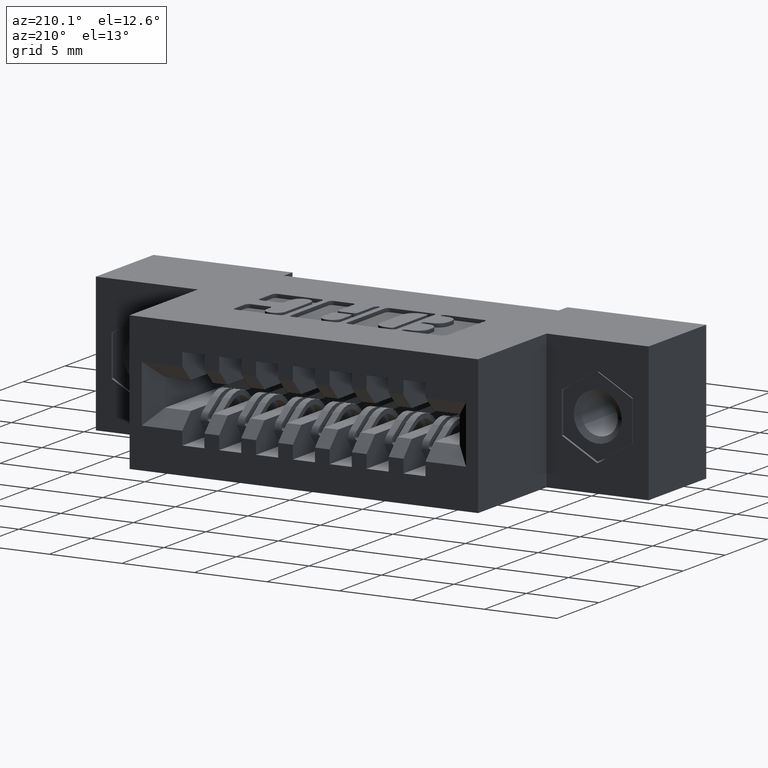
[diagram: clean part render]
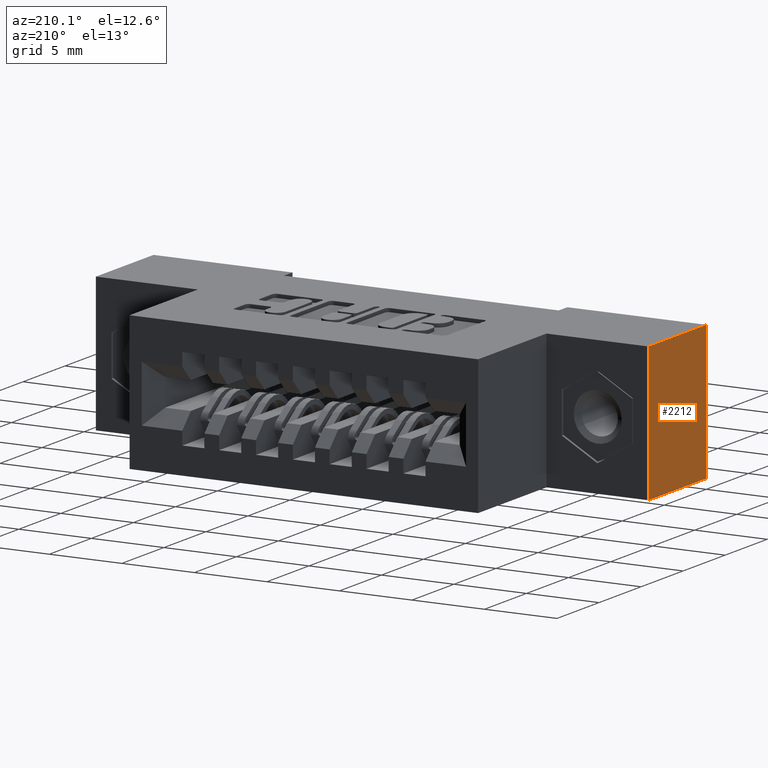
[diagram: same view with one face highlighted and labeled with its STEP entity id]
A machine part, auxiliary view. The second image highlights one B-rep face of the part: STEP entity #2212.
In plain terms, the highlighted planar face has unit normal (1, 0, 0).
Its self-contained STEP definition (entity closure, byte-faithful):
#1064 = CARTESIAN_POINT ( 'NONE',  ( -4.695363739110452100E-017, 0.2699999999999999600, -0.3700000000000000000 ) ) ;
#1424 = DIRECTION ( 'NONE',  ( -0.0000000000000000000, -1.000000000000000000, -0.0000000000000000000 ) ) ;
#1428 = VERTEX_POINT ( 'NONE', #2901 ) ;
#1443 = LINE ( 'NONE', #6291, #1692 ) ;
#1599 = EDGE_CURVE ( 'NONE', #5223, #1428, #5152, .T. ) ;
#1692 = VECTOR ( 'NONE', #4793, 39.37007874015748100 ) ;
#1926 = CARTESIAN_POINT ( 'NONE',  ( 0.0000000000000000000, 0.5899999999999999700, 0.0000000000000000000 ) ) ;
#2032 = PLANE ( 'NONE',  #7866 ) ;
#2112 = CARTESIAN_POINT ( 'NONE',  ( 0.0000000000000000000, 0.5899999999999999700, 0.0000000000000000000 ) ) ;
#2212 = ADVANCED_FACE ( 'NONE', ( #7720 ), #2032, .F. ) ;
#2522 = LINE ( 'NONE', #1064, #9407 ) ;
#2590 = ORIENTED_EDGE ( 'NONE', *, *, #9342, .T. ) ;
#2901 = CARTESIAN_POINT ( 'NONE',  ( 0.0000000000000000000, 0.0000000000000000000, -0.3700000000000000000 ) ) ;
#3766 = DIRECTION ( 'NONE',  ( 0.0000000000000000000, 0.0000000000000000000, -1.000000000000000000 ) ) ;
#3917 = DIRECTION ( 'NONE',  ( 1.000000000000000000, -0.0000000000000000000, 0.0000000000000000000 ) ) ;
#3981 = EDGE_LOOP ( 'NONE', ( #8117, #7978, #2590, #7394 ) ) ;
#4793 = DIRECTION ( 'NONE',  ( -0.0000000000000000000, -0.0000000000000000000, 1.000000000000000000 ) ) ;
#4920 = VECTOR ( 'NONE', #1424, 39.37007874015748100 ) ;
#5152 = LINE ( 'NONE', #6260, #4920 ) ;
#5223 = VERTEX_POINT ( 'NONE', #9217 ) ;
#5244 = CARTESIAN_POINT ( 'NONE',  ( 0.0000000000000000000, 0.0000000000000000000, 0.0000000000000000000 ) ) ;
#5410 = EDGE_CURVE ( 'NONE', #5223, #9556, #2522, .T. ) ;
#5813 = DIRECTION ( 'NONE',  ( -0.0000000000000000000, -1.000000000000000000, -0.0000000000000000000 ) ) ;
#6260 = CARTESIAN_POINT ( 'NONE',  ( 0.0000000000000000000, 0.5899999999999999700, -0.3700000000000000000 ) ) ;
#6291 = CARTESIAN_POINT ( 'NONE',  ( 0.0000000000000000000, 0.0000000000000000000, 0.0000000000000000000 ) ) ;
#6743 = VERTEX_POINT ( 'NONE', #5244 ) ;
#7078 = LINE ( 'NONE', #1926, #8804 ) ;
#7232 = DIRECTION ( 'NONE',  ( 1.211334625569035700E-016, 0.0000000000000000000, 1.000000000000000000 ) ) ;
#7394 = ORIENTED_EDGE ( 'NONE', *, *, #7628, .F. ) ;
#7628 = EDGE_CURVE ( 'NONE', #9556, #6743, #7078, .T. ) ;
#7720 = FACE_OUTER_BOUND ( 'NONE', #3981, .T. ) ;
#7866 = AXIS2_PLACEMENT_3D ( 'NONE', #2112, #3917, #3766 ) ;
#7978 = ORIENTED_EDGE ( 'NONE', *, *, #1599, .T. ) ;
#8055 = CARTESIAN_POINT ( 'NONE',  ( -2.134256245050205600E-018, 0.2699999999999999600, 0.0000000000000000000 ) ) ;
#8117 = ORIENTED_EDGE ( 'NONE', *, *, #5410, .F. ) ;
#8804 = VECTOR ( 'NONE', #5813, 39.37007874015748100 ) ;
#9217 = CARTESIAN_POINT ( 'NONE',  ( -4.695363739110452100E-017, 0.2699999999999999600, -0.3700000000000000000 ) ) ;
#9342 = EDGE_CURVE ( 'NONE', #1428, #6743, #1443, .T. ) ;
#9407 = VECTOR ( 'NONE', #7232, 39.37007874015748100 ) ;
#9556 = VERTEX_POINT ( 'NONE', #8055 ) ;